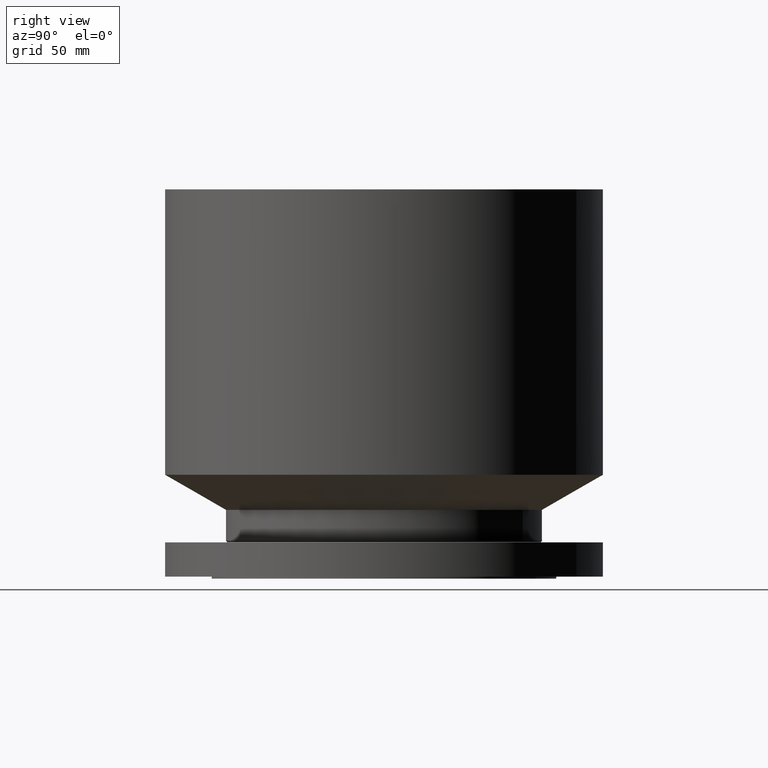
[diagram: clean part render]
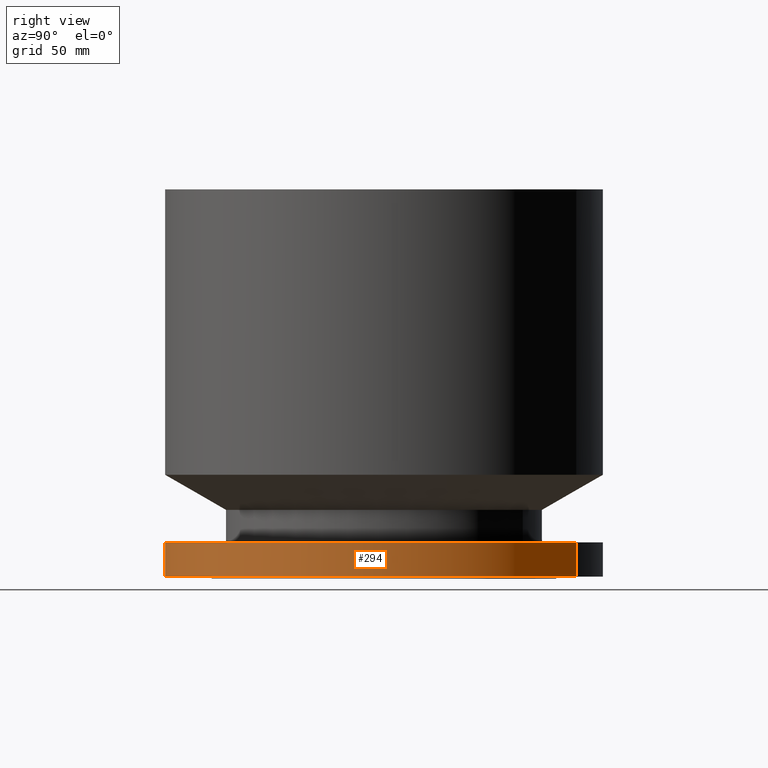
[diagram: same view with one face highlighted and labeled with its STEP entity id]
A machine part, right view. The second image highlights one B-rep face of the part: STEP entity #294.
In plain terms, the highlighted cylindrical surface (partial cylindrical patch) has radius 171.45 mm, axis along (0, 0, -1).
Its self-contained STEP definition (entity closure, byte-faithful):
#91=AXIS2_PLACEMENT_3D('Circle Axis2P3D',#89,#90,$) ;
#255=AXIS2_PLACEMENT_3D('Cylinder Axis2P3D',#252,#253,#254) ;
#285=AXIS2_PLACEMENT_3D('Circle Axis2P3D',#283,#284,$) ;
#84=CARTESIAN_POINT('Vertex',(-3.23612238559,-5.92368229278,1.1189649382E-015)) ;
#86=CARTESIAN_POINT('Vertex',(3.23612238559,5.92368229278,1.1189649382E-015)) ;
#89=CARTESIAN_POINT('Axis2P3D Location',(0.,0.,0.)) ;
#252=CARTESIAN_POINT('Axis2P3D Location',(0.,0.,5.93750000002)) ;
#257=CARTESIAN_POINT('Line Origine',(-3.23612238559,-5.92368229278,7.5387658774)) ;
#261=CARTESIAN_POINT('Vertex',(-3.23612238559,-5.92368229278,1.0575)) ;
#268=CARTESIAN_POINT('Vertex',(3.23612238559,5.92368229278,1.0575)) ;
#271=CARTESIAN_POINT('Line Origine',(3.23612238559,5.92368229278,7.5387658774)) ;
#283=CARTESIAN_POINT('Axis2P3D Location',(0.,0.,1.0575)) ;
#90=DIRECTION('Axis2P3D Direction',(0.,0.,-0.0393700787402)) ;
#253=DIRECTION('Axis2P3D Direction',(0.,0.,-0.0393700787402)) ;
#254=DIRECTION('Axis2P3D XDirection',(-0.0188750212049,-0.0345504945626,0.)) ;
#258=DIRECTION('Vector Direction',(0.,0.,-0.0393700787402)) ;
#272=DIRECTION('Vector Direction',(0.,0.,-0.0393700787402)) ;
#284=DIRECTION('Axis2P3D Direction',(0.,0.,-0.0393700787402)) ;
#259=VECTOR('Line Direction',#258,0.0393700787402) ;
#273=VECTOR('Line Direction',#272,0.0393700787402) ;
#289=ORIENTED_EDGE('',*,*,#93,.F.) ;
#290=ORIENTED_EDGE('',*,*,#275,.T.) ;
#291=ORIENTED_EDGE('',*,*,#287,.T.) ;
#292=ORIENTED_EDGE('',*,*,#263,.F.) ;
#294=ADVANCED_FACE('PartBody',(#293),#256,.T.) ;
#92=CIRCLE('generated circle',#91,6.75000000003) ;
#286=CIRCLE('generated circle',#285,6.75000000003) ;
#256=CYLINDRICAL_SURFACE('generated cylinder',#255,6.75000000003) ;
#93=EDGE_CURVE('',#87,#85,#92,.T.) ;
#263=EDGE_CURVE('',#85,#262,#260,.F.) ;
#275=EDGE_CURVE('',#87,#269,#274,.F.) ;
#287=EDGE_CURVE('',#269,#262,#286,.T.) ;
#288=EDGE_LOOP('',(#289,#290,#291,#292)) ;
#293=FACE_OUTER_BOUND('',#288,.T.) ;
#260=LINE('Line',#257,#259) ;
#274=LINE('Line',#271,#273) ;
#85=VERTEX_POINT('',#84) ;
#87=VERTEX_POINT('',#86) ;
#262=VERTEX_POINT('',#261) ;
#269=VERTEX_POINT('',#268) ;